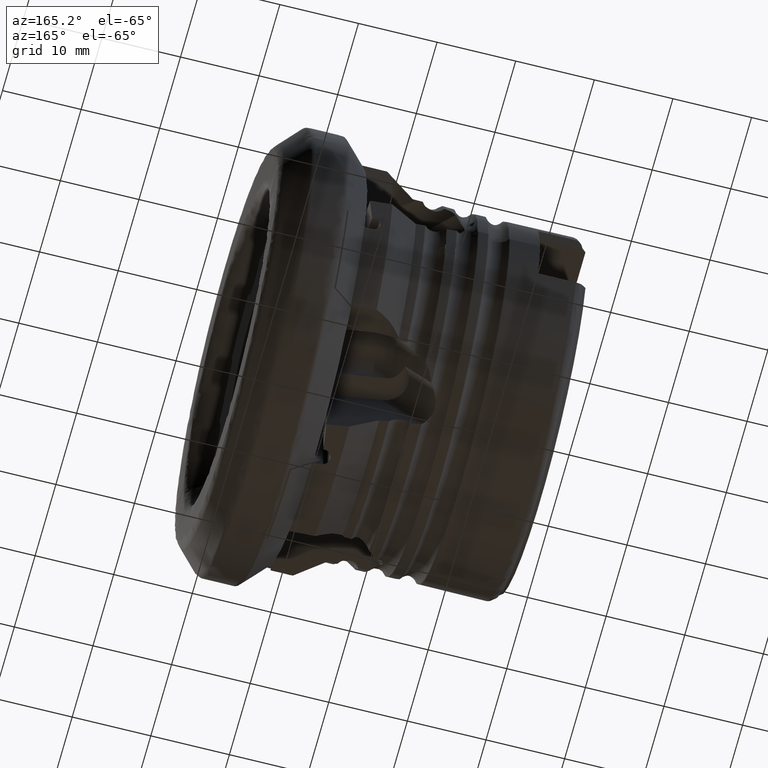
[diagram: clean part render]
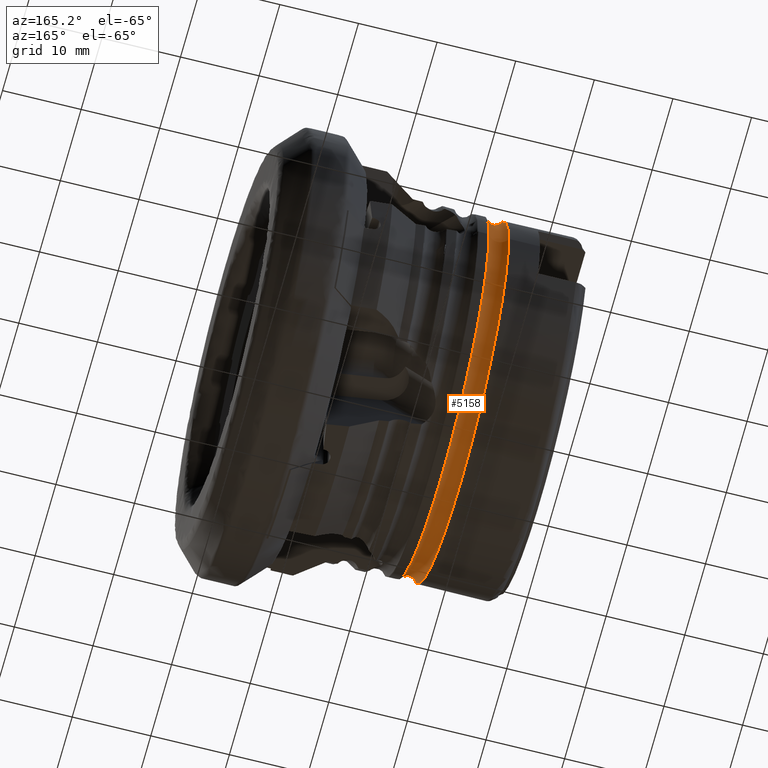
[diagram: same view with one face highlighted and labeled with its STEP entity id]
A machine part, auxiliary view. The second image highlights one B-rep face of the part: STEP entity #5158.
In plain terms, the highlighted toroidal blend (fillet) surface has major radius 23.75 mm and minor (blend) radius 1.5 mm.
Its self-contained STEP definition (entity closure, byte-faithful):
#103 = TOROIDAL_SURFACE ( 'NONE', #3504, 23.75000000000000000, 1.500000000000000000 ) ;
#158 = CARTESIAN_POINT ( 'NONE',  ( -28.89392989822397700, 22.91176470588236200, 0.0000000000000000000 ) ) ;
#413 = DIRECTION ( 'NONE',  ( 1.000000000000000000, 1.224646799147353700E-016, -0.0000000000000000000 ) ) ;
#545 = EDGE_CURVE ( 'NONE', #10126, #10126, #5741, .T. ) ;
#704 = VERTEX_POINT ( 'NONE', #4304 ) ;
#1264 = DIRECTION ( 'NONE',  ( 1.000000000000000000, 1.224646799147353700E-016, -0.0000000000000000000 ) ) ;
#1789 = AXIS2_PLACEMENT_3D ( 'NONE', #4678, #1264, #2949 ) ;
#2083 = CARTESIAN_POINT ( 'NONE',  ( -26.40607010177602000, -3.233810922820064400E-015, 0.0000000000000000000 ) ) ;
#2340 = FACE_OUTER_BOUND ( 'NONE', #7412, .T. ) ;
#2802 = CIRCLE ( 'NONE', #7042, 22.91176470588235900 ) ;
#2949 = DIRECTION ( 'NONE',  ( -1.514264394947661200E-016, 1.000000000000000000, 0.0000000000000000000 ) ) ;
#3308 = DIRECTION ( 'NONE',  ( 1.000000000000000000, 1.224646799147353700E-016, -0.0000000000000000000 ) ) ;
#3493 = EDGE_CURVE ( 'NONE', #704, #704, #2802, .T. ) ;
#3504 = AXIS2_PLACEMENT_3D ( 'NONE', #7686, #3308, #5477 ) ;
#4304 = CARTESIAN_POINT ( 'NONE',  ( -26.40607010177602400, 22.91176470588235500, 0.0000000000000000000 ) ) ;
#4317 = ORIENTED_EDGE ( 'NONE', *, *, #3493, .F. ) ;
#4554 = EDGE_LOOP ( 'NONE', ( #4317 ) ) ;
#4678 = CARTESIAN_POINT ( 'NONE',  ( -28.89392989822397300, -3.538485876464801500E-015, 0.0000000000000000000 ) ) ;
#5158 = ADVANCED_FACE ( 'NONE', ( #2340, #8516 ), #103, .F. ) ;
#5338 = DIRECTION ( 'NONE',  ( -1.514264394947661700E-016, 1.000000000000000000, 0.0000000000000000000 ) ) ;
#5477 = DIRECTION ( 'NONE',  ( -1.224646799147353700E-016, 1.000000000000000000, 0.0000000000000000000 ) ) ;
#5741 = CIRCLE ( 'NONE', #1789, 22.91176470588236600 ) ;
#5764 = ORIENTED_EDGE ( 'NONE', *, *, #545, .T. ) ;
#7042 = AXIS2_PLACEMENT_3D ( 'NONE', #2083, #413, #5338 ) ;
#7412 = EDGE_LOOP ( 'NONE', ( #5764 ) ) ;
#7686 = CARTESIAN_POINT ( 'NONE',  ( -27.64999999999999500, -3.469446951953614200E-015, 0.0000000000000000000 ) ) ;
#8516 = FACE_OUTER_BOUND ( 'NONE', #4554, .T. ) ;
#10126 = VERTEX_POINT ( 'NONE', #158 ) ;